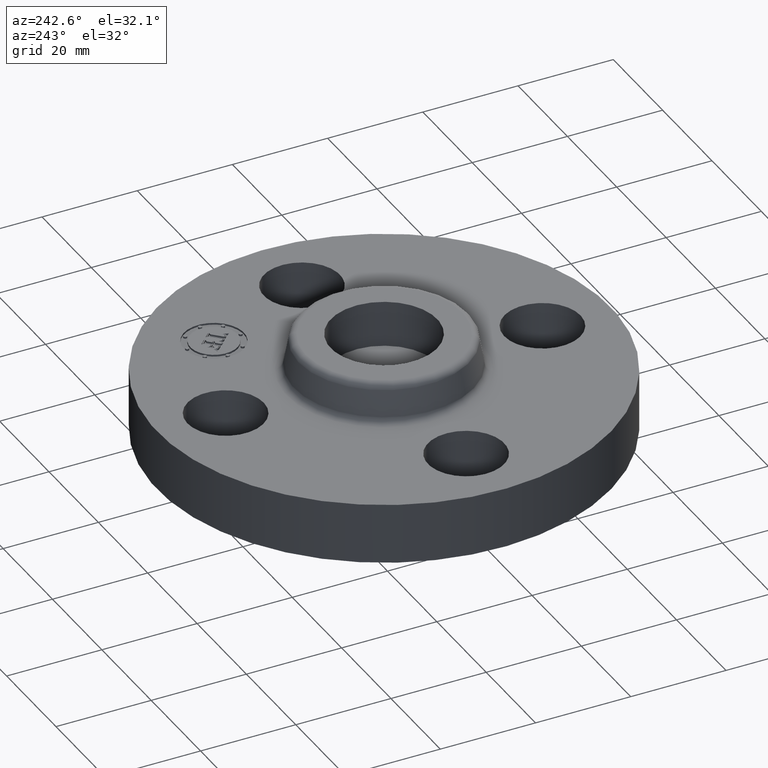
[diagram: clean part render]
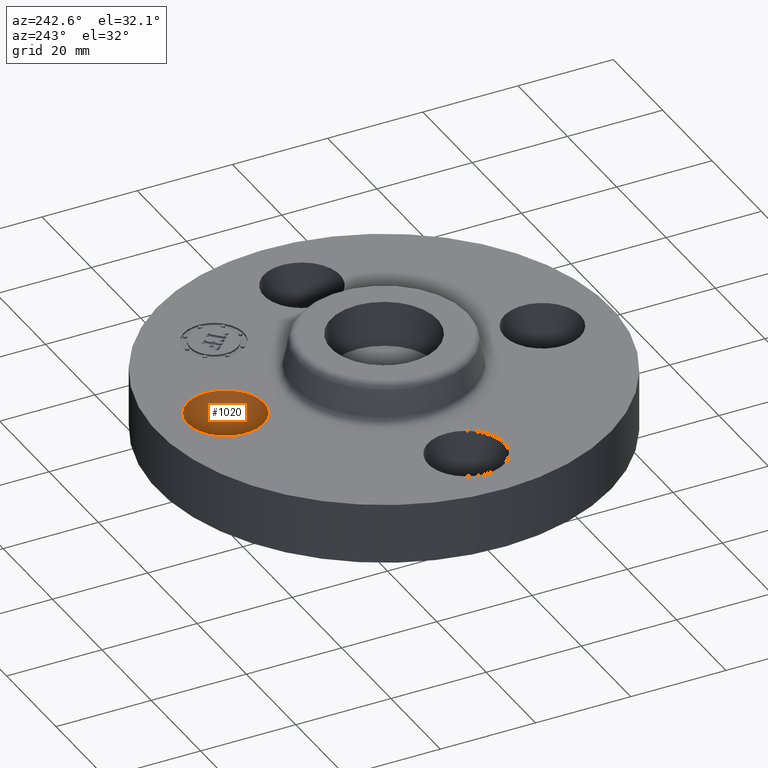
[diagram: same view with one face highlighted and labeled with its STEP entity id]
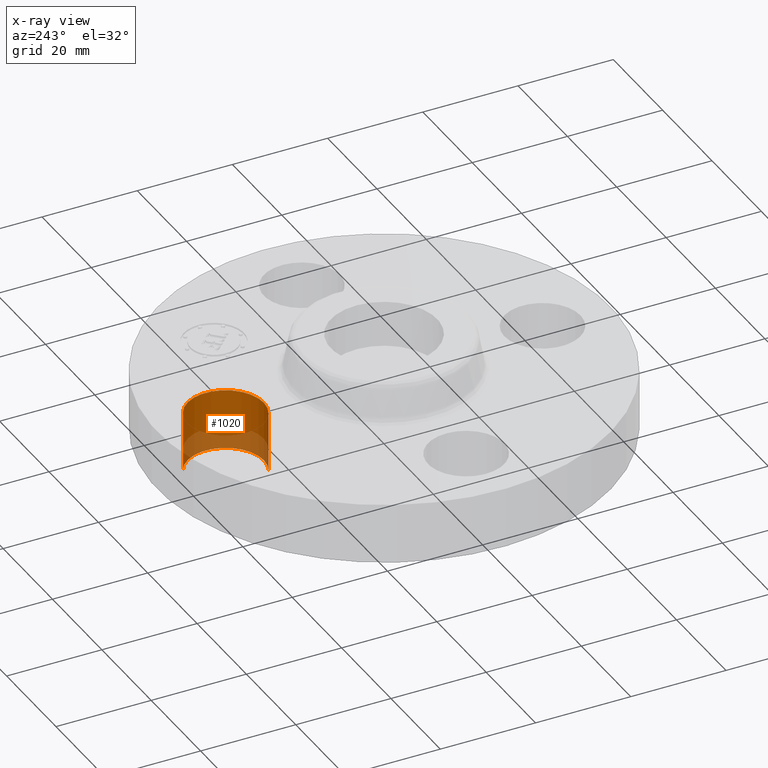
[diagram: x-ray of the same camera — body ghosted, the highlighted face saturated]
A machine part, auxiliary view. The second image highlights one B-rep face of the part: STEP entity #1020.
The next image is the same camera in x-ray: the body ghosted, the highlighted face saturated — about 31% of this face is hidden behind the body in this view.
In plain terms, the highlighted cylindrical surface (partial cylindrical patch) has radius 8.001 mm, axis along (-0, 0, -1).
Its self-contained STEP definition (entity closure, byte-faithful):
#593=AXIS2_PLACEMENT_3D('Circle Axis2P3D',#591,#592,$) ;
#1007=AXIS2_PLACEMENT_3D('Cylinder Axis2P3D',#1004,#1005,#1006) ;
#1011=AXIS2_PLACEMENT_3D('Circle Axis2P3D',#1009,#1010,$) ;
#586=CARTESIAN_POINT('Vertex',(-0.151019044675,1.03356149302,0.)) ;
#588=CARTESIAN_POINT('Vertex',(0.151019044675,1.58643850703,0.)) ;
#591=CARTESIAN_POINT('Axis2P3D Location',(-1.28118338336E-011,1.31000000003,0.)) ;
#959=CARTESIAN_POINT('Line Origine',(-0.151019044661,1.03356149301,0.250000000001)) ;
#963=CARTESIAN_POINT('Vertex',(-0.151019044659,1.03356149301,0.499999999987)) ;
#966=CARTESIAN_POINT('Line Origine',(0.151019044661,1.58643850701,0.250000000001)) ;
#970=CARTESIAN_POINT('Vertex',(0.151019044661,1.58643850701,0.499999999987)) ;
#1004=CARTESIAN_POINT('Axis2P3D Location',(-2.40643096033E-016,1.31000000001,0.496062992128)) ;
#1009=CARTESIAN_POINT('Axis2P3D Location',(-2.40643096033E-016,1.31000000001,0.499999999987)) ;
#592=DIRECTION('Axis2P3D Direction',(0.,0.,-0.0393700787402)) ;
#960=DIRECTION('Vector Direction',(0.,0.,-0.0393700787402)) ;
#967=DIRECTION('Vector Direction',(0.,0.,-0.0393700787402)) ;
#1005=DIRECTION('Axis2P3D Direction',(-0.,0.,-0.0393700787402)) ;
#1006=DIRECTION('Axis2P3D XDirection',(0.0188750212049,0.0345504945626,0.)) ;
#1010=DIRECTION('Axis2P3D Direction',(-0.,0.,-0.0393700787402)) ;
#961=VECTOR('Line Direction',#960,0.0393700787402) ;
#968=VECTOR('Line Direction',#967,0.0393700787402) ;
#1015=ORIENTED_EDGE('',*,*,#972,.F.) ;
#1016=ORIENTED_EDGE('',*,*,#595,.T.) ;
#1017=ORIENTED_EDGE('',*,*,#965,.T.) ;
#1018=ORIENTED_EDGE('',*,*,#1013,.F.) ;
#1020=ADVANCED_FACE('PartBody',(#1019),#1008,.F.) ;
#594=CIRCLE('generated circle',#593,0.315000000013) ;
#1012=CIRCLE('generated circle',#1011,0.315000000001) ;
#1008=CYLINDRICAL_SURFACE('generated cylinder',#1007,0.315000000001) ;
#595=EDGE_CURVE('',#589,#587,#594,.T.) ;
#965=EDGE_CURVE('',#587,#964,#962,.F.) ;
#972=EDGE_CURVE('',#589,#971,#969,.F.) ;
#1013=EDGE_CURVE('',#971,#964,#1012,.T.) ;
#1014=EDGE_LOOP('',(#1015,#1016,#1017,#1018)) ;
#1019=FACE_OUTER_BOUND('',#1014,.T.) ;
#962=LINE('Line',#959,#961) ;
#969=LINE('Line',#966,#968) ;
#587=VERTEX_POINT('',#586) ;
#589=VERTEX_POINT('',#588) ;
#964=VERTEX_POINT('',#963) ;
#971=VERTEX_POINT('',#970) ;